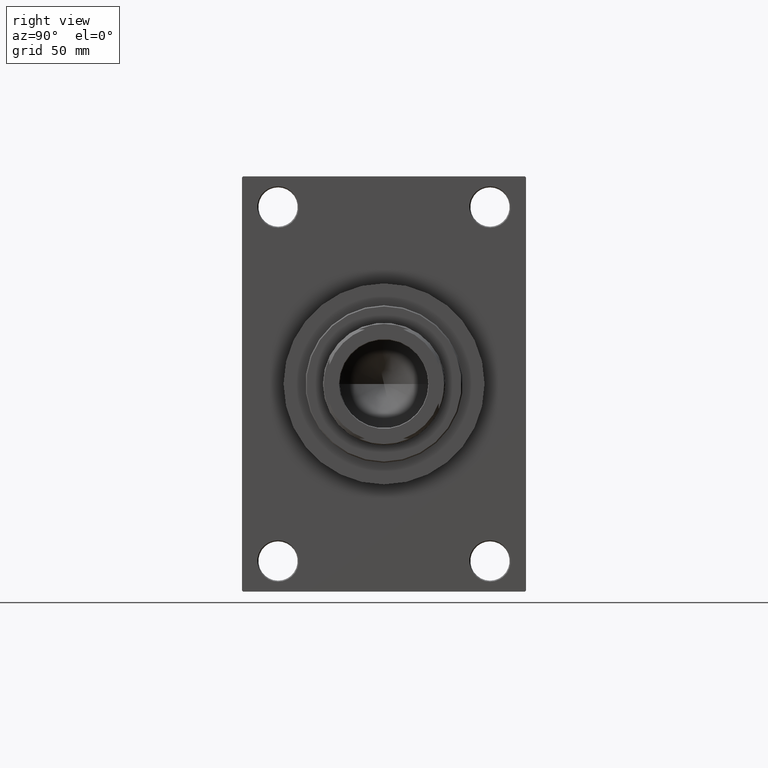
[diagram: clean part render]
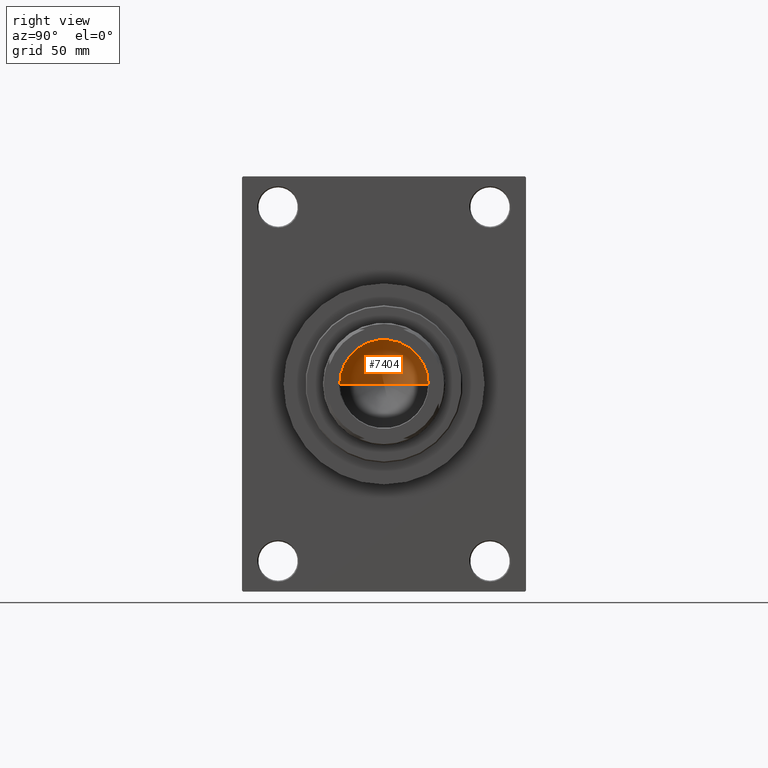
[diagram: same view with one face highlighted and labeled with its STEP entity id]
A machine part, right view. The second image highlights one B-rep face of the part: STEP entity #7404.
In plain terms, the highlighted conical surface has half-angle 59 deg.
Its self-contained STEP definition (entity closure, byte-faithful):
#81 = CIRCLE ( 'NONE', #47079, 20.24999999999998934 ) ;
#1905 = CARTESIAN_POINT ( 'NONE',  ( 20.24999999999998934, 0.000000000000000000, 117.0000000000000142 ) ) ;
#2908 = DIRECTION ( 'NONE',  ( -0.8571673007021115565, 1.049727191138617710E-16, 0.5150380749100554878 ) ) ;
#3151 = CARTESIAN_POINT ( 'NONE',  ( -20.24999999999998934, 2.479909768273389117E-15, 117.0000000000000142 ) ) ;
#3923 = AXIS2_PLACEMENT_3D ( 'NONE', #4661, #34557, #12835 ) ;
#4661 = CARTESIAN_POINT ( 'NONE',  ( 0.000000000000000000, 0.000000000000000000, 117.0000000000000142 ) ) ;
#7404 = ADVANCED_FACE ( 'NONE', ( #27305 ), #8545, .F. ) ;
#8545 = CONICAL_SURFACE ( 'NONE', #3923, 20.24999999999998934, 1.029744258676652979 ) ;
#12835 = DIRECTION ( 'NONE',  ( 1.000000000000000000, 0.000000000000000000, 0.000000000000000000 ) ) ;
#13764 = LINE ( 'NONE', #3151, #25983 ) ;
#13804 = EDGE_CURVE ( 'NONE', #45496, #23405, #43403, .T. ) ;
#15436 = CARTESIAN_POINT ( 'NONE',  ( -20.24999999999998934, 2.479909768273389117E-15, 117.0000000000000142 ) ) ;
#16618 = EDGE_LOOP ( 'NONE', ( #45134, #29204, #18335 ) ) ;
#18335 = ORIENTED_EDGE ( 'NONE', *, *, #34885, .T. ) ;
#18655 = DIRECTION ( 'NONE',  ( -0.000000000000000000, -0.000000000000000000, 1.000000000000000000 ) ) ;
#19947 = CARTESIAN_POINT ( 'NONE',  ( -1.584115414415908206E-14, 0.000000000000000000, 104.8325724646918928 ) ) ;
#21171 = DIRECTION ( 'NONE',  ( 0.8571673007021115565, 0.000000000000000000, 0.5150380749100554878 ) ) ;
#21369 = DIRECTION ( 'NONE',  ( 1.000000000000000000, 0.000000000000000000, 0.000000000000000000 ) ) ;
#23405 = VERTEX_POINT ( 'NONE', #46962 ) ;
#25983 = VECTOR ( 'NONE', #2908, 1000.000000000000000 ) ;
#26657 = EDGE_CURVE ( 'NONE', #45496, #40789, #13764, .T. ) ;
#27305 = FACE_OUTER_BOUND ( 'NONE', #16618, .T. ) ;
#29204 = ORIENTED_EDGE ( 'NONE', *, *, #26657, .T. ) ;
#32482 = CARTESIAN_POINT ( 'NONE',  ( 0.000000000000000000, 0.000000000000000000, 117.0000000000000142 ) ) ;
#34557 = DIRECTION ( 'NONE',  ( -0.000000000000000000, -0.000000000000000000, 1.000000000000000000 ) ) ;
#34885 = EDGE_CURVE ( 'NONE', #40789, #23405, #81, .T. ) ;
#39576 = VECTOR ( 'NONE', #21171, 1000.000000000000000 ) ;
#40789 = VERTEX_POINT ( 'NONE', #15436 ) ;
#43403 = LINE ( 'NONE', #1905, #39576 ) ;
#45134 = ORIENTED_EDGE ( 'NONE', *, *, #13804, .F. ) ;
#45496 = VERTEX_POINT ( 'NONE', #19947 ) ;
#46962 = CARTESIAN_POINT ( 'NONE',  ( 20.24999999999998934, 0.000000000000000000, 117.0000000000000142 ) ) ;
#47079 = AXIS2_PLACEMENT_3D ( 'NONE', #32482, #18655, #21369 ) ;